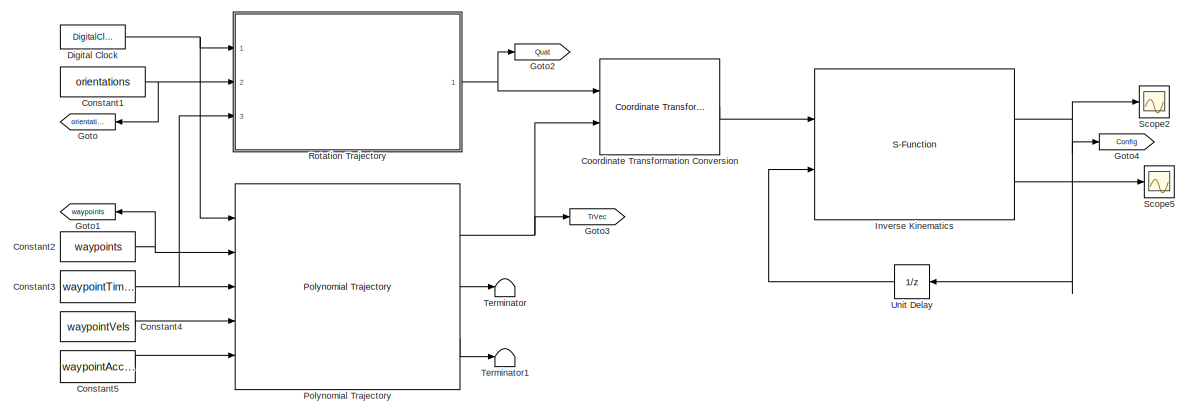
[diagram: root canvas - part 1/3, central region]
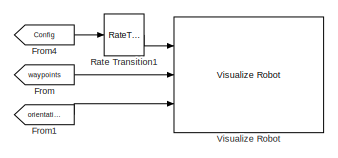
[diagram: root canvas - part 2/3, top right region]
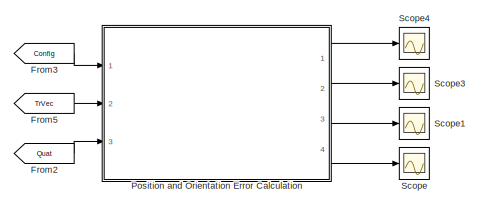
[diagram: root canvas - part 3/3, bottom right region]
MODEL slx_10bb053a7b2e
KIND model
CONFIG AbsTol = auto
CONFIG EnableMultiTasking = off
CONFIG FixedStep = auto
CONFIG MaxStep = auto
CONFIG MinStep = auto
CONFIG RelTol = 1e-3
CONFIG SampleTimeConstraint = Unconstrained
CONFIG Solver = VariableStepAuto
CONFIG SolverName = VariableStepAuto
CONFIG StartTime = 0.0
CONFIG StopTime = 15
BLOCK [Constant] Constant1
  Value = orientations
BLOCK [Constant] Constant2
  Value = waypoints
BLOCK [Constant] Constant3
  Value = waypointTimes
BLOCK [Constant] Constant4
  Value = waypointVels
BLOCK [Constant] Constant5
  Value = waypointAccels
BLOCK [Reference] Coordinate Transformation Conversion  REF=robotcorelib/Coordinate Transformation Conversion
  Ports = [2, 1]
  SourceBlock = robotcorelib/Coordinate Transformation Conversion
  SourceProductBaseCode = NV,RO,RR
  SourceType = robotics.slcore.internal.block.CoordinateTransformationConversion
BLOCK [DigitalClock] Digital Clock
  SampleTime = Ts
BLOCK [From] From
  GotoTag = waypoints
BLOCK [From] From1
  GotoTag = orientation
BLOCK [From] From2
  GotoTag = Quat
BLOCK [From] From3
  GotoTag = Config
BLOCK [From] From4
  GotoTag = Config
BLOCK [From] From5
  GotoTag = TrVec
BLOCK [Goto] Goto
  GotoTag = orientation
  NameLocation = top
BLOCK [Goto] Goto1
  GotoTag = waypoints
  NameLocation = top
BLOCK [Goto] Goto2
  GotoTag = Quat
BLOCK [Goto] Goto3
  GotoTag = TrVec
BLOCK [Goto] Goto4
  GotoTag = Config
BLOCK [S-Function] Inverse Kinematics
  CopyFcn = set_param(gcbh,'LinkStatus','none')
  EnableBusSupport = off
  FunctionName = Inverse_Kinematics_BFGS
  InitFcn = try, set_param(gcb,'FunctionName','Inverse_Kinematics_BFGS'), end
  OpenFcn = sfunctionwizard(gcbh)
  Ports = [2, 2]
  PreSaveFcn = try, set_param(gcb,'FunctionName','Inverse_Kinematics_BFGS'), end
  SFcnIsStateOwnerBlock = off
  SFunctionDeploymentMode = off
  SFunctionModules = Inverse_Kinematics_BFGS_wrapper
BLOCK [Reference] Polynomial Trajectory  REF=robotcorelib/Polynomial Trajectory
  Ports = [5, 3]
  SourceBlock = robotcorelib/Polynomial Trajectory
  SourceProductBaseCode = NV,RO,RR
  SourceType = robotics.slcore.internal.block.PolyTrajSys
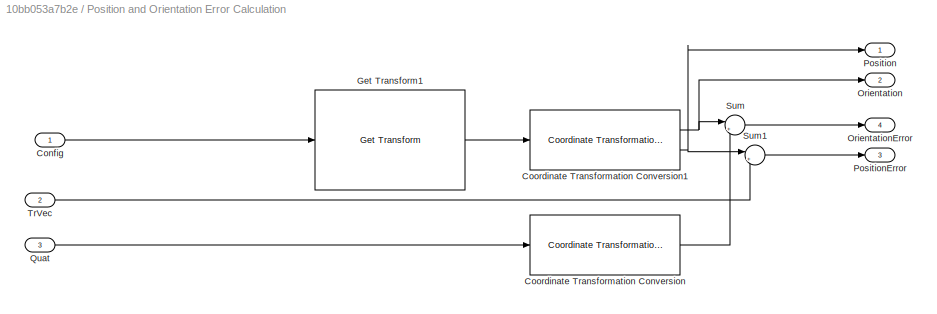
BLOCK [SubSystem] Position and Orientation Error Calculation
  Ports = [3, 4]
  RequestExecContextInheritance = off
  Tag = Error Calculation
BLOCK [Inport] Position and Orientation Error Calculation/Config
BLOCK [Reference] Position and Orientation Error Calculation/Coordinate Transformation Conversion  REF=robotcorelib/Coordinate Transformation Conversion
  Ports = [1, 1]
  SourceBlock = robotcorelib/Coordinate Transformation Conversion
  SourceProductBaseCode = NV,RO,RR
  SourceType = robotics.slcore.internal.block.CoordinateTransformationConversion
BLOCK [Reference] Position and Orientation Error Calculation/Coordinate Transformation Conversion1  REF=robotcorelib/Coordinate Transformation Conversion
  Ports = [1, 2]
  SourceBlock = robotcorelib/Coordinate Transformation Conversion
  SourceProductBaseCode = NV,RO,RR
  SourceType = robotics.slcore.internal.block.CoordinateTransformationConversion
BLOCK [Reference] Position and Orientation Error Calculation/Get Transform1  REF=robotmaniplib/Get Transform
  Ports = [1, 1]
  SourceBlock = robotmaniplib/Get Transform
  SourceProductBaseCode = RO
  SourceType = Get Transform
BLOCK [Outport] Position and Orientation Error Calculation/Orientation
  Port = 2
BLOCK [Outport] Position and Orientation Error Calculation/OrientationError
  Port = 4
BLOCK [Outport] Position and Orientation Error Calculation/Position
BLOCK [Outport] Position and Orientation Error Calculation/PositionError
  Port = 3
BLOCK [Inport] Position and Orientation Error Calculation/Quat
  Port = 3
BLOCK [Sum] Position and Orientation Error Calculation/Sum
  Inputs = |+-
  Ports = [2, 1]
BLOCK [Sum] Position and Orientation Error Calculation/Sum1
  Inputs = |+-
  Ports = [2, 1]
BLOCK [Inport] Position and Orientation Error Calculation/TrVec
  Port = 2
BLOCK [RateTransition] Rate Transition1
  NameLocation = top
  OutPortSampleTime = Ts
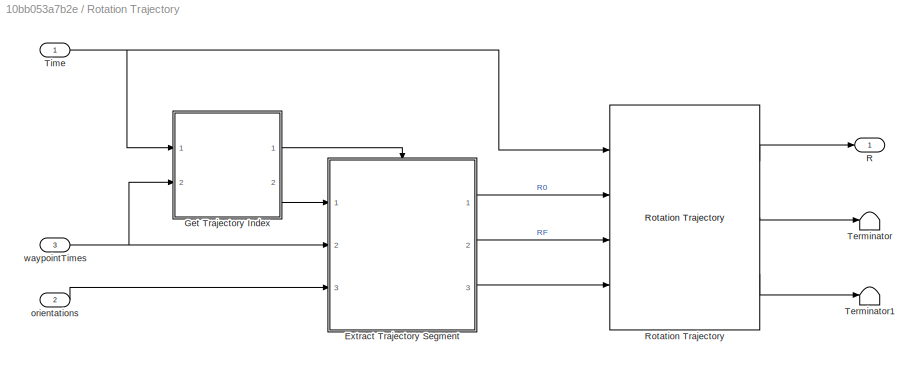
BLOCK [SubSystem] Rotation Trajectory
  Ports = [3, 1]
  RequestExecContextInheritance = off
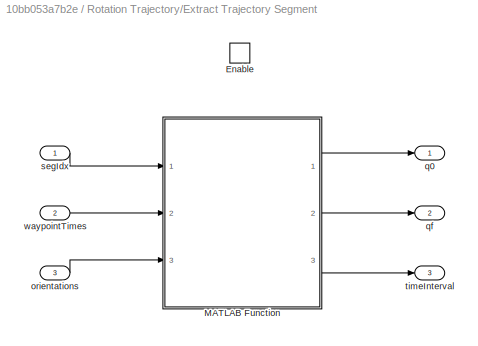
BLOCK [SubSystem] Rotation Trajectory/Extract Trajectory Segment
  Ports = [3, 3, 1]
  RequestExecContextInheritance = off
BLOCK [EnablePort] Rotation Trajectory/Extract Trajectory Segment/Enable
  Ports = []
  PropagateVarSize = During execution
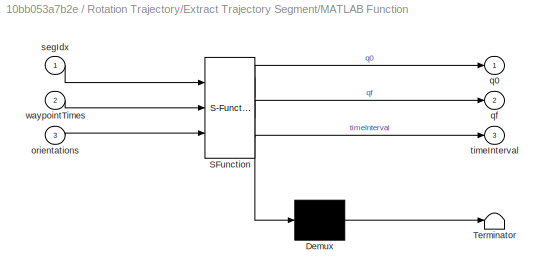
BLOCK [SubSystem] Rotation Trajectory/Extract Trajectory Segment/MATLAB Function
  ErrorFcn = Stateflow.Translate.translate
  PermitHierarchicalResolution = ExplicitOnly
  Ports = [3, 3]
  RequestExecContextInheritance = off
  SFBlockType = MATLAB Function
  TreatAsAtomicUnit = on
BLOCK [Demux] Rotation Trajectory/Extract Trajectory Segment/MATLAB Function/ Demux 
  Outputs = 1
  Ports = [1, 1]
BLOCK [S-Function] Rotation Trajectory/Extract Trajectory Segment/MATLAB Function/ SFunction 
  EnableBusSupport = on
  FunctionName = sf_sfun
  PortCounts = [3 4]
  Ports = [3, 4]
  SFcnIsStateOwnerBlock = off
  SFunctionDeploymentMode = off
  Tag = Stateflow S-Function 7
BLOCK [Terminator] Rotation Trajectory/Extract Trajectory Segment/MATLAB Function/ Terminator 
BLOCK [Inport] Rotation Trajectory/Extract Trajectory Segment/MATLAB Function/orientations
  Port = 3
BLOCK [Outport] Rotation Trajectory/Extract Trajectory Segment/MATLAB Function/q0
  VectorParamsAs1DForOutWhenUnconnected = off
BLOCK [Outport] Rotation Trajectory/Extract Trajectory Segment/MATLAB Function/qf
  Port = 2
  VectorParamsAs1DForOutWhenUnconnected = off
BLOCK [Inport] Rotation Trajectory/Extract Trajectory Segment/MATLAB Function/segIdx
BLOCK [Outport] Rotation Trajectory/Extract Trajectory Segment/MATLAB Function/timeInterval
  Port = 3
  VectorParamsAs1DForOutWhenUnconnected = off
BLOCK [Inport] Rotation Trajectory/Extract Trajectory Segment/MATLAB Function/waypointTimes
  Port = 2
BLOCK [Inport] Rotation Trajectory/Extract Trajectory Segment/orientations
  Port = 3
BLOCK [Outport] Rotation Trajectory/Extract Trajectory Segment/q0
  VectorParamsAs1DForOutWhenUnconnected = off
BLOCK [Outport] Rotation Trajectory/Extract Trajectory Segment/qf
  Port = 2
  VectorParamsAs1DForOutWhenUnconnected = off
BLOCK [Inport] Rotation Trajectory/Extract Trajectory Segment/segIdx
BLOCK [Outport] Rotation Trajectory/Extract Trajectory Segment/timeInterval
  Port = 3
  VectorParamsAs1DForOutWhenUnconnected = off
BLOCK [Inport] Rotation Trajectory/Extract Trajectory Segment/waypointTimes
  Port = 2
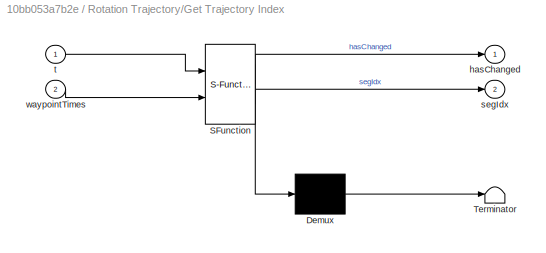
BLOCK [SubSystem] Rotation Trajectory/Get Trajectory Index
  ErrorFcn = Stateflow.Translate.translate
  PermitHierarchicalResolution = ExplicitOnly
  Ports = [2, 2]
  RequestExecContextInheritance = off
  SFBlockType = MATLAB Function
  TreatAsAtomicUnit = on
BLOCK [Demux] Rotation Trajectory/Get Trajectory Index/ Demux 
  Outputs = 1
  Ports = [1, 1]
BLOCK [S-Function] Rotation Trajectory/Get Trajectory Index/ SFunction 
  EnableBusSupport = on
  FunctionName = sf_sfun
  PortCounts = [2 3]
  Ports = [2, 3]
  SFcnIsStateOwnerBlock = off
  SFunctionDeploymentMode = off
  Tag = Stateflow S-Function 6
BLOCK [Terminator] Rotation Trajectory/Get Trajectory Index/ Terminator 
BLOCK [Outport] Rotation Trajectory/Get Trajectory Index/hasChanged
  VectorParamsAs1DForOutWhenUnconnected = off
BLOCK [Outport] Rotation Trajectory/Get Trajectory Index/segIdx
  Port = 2
  VectorParamsAs1DForOutWhenUnconnected = off
BLOCK [Inport] Rotation Trajectory/Get Trajectory Index/t
BLOCK [Inport] Rotation Trajectory/Get Trajectory Index/waypointTimes
  Port = 2
BLOCK [Outport] Rotation Trajectory/R
  VectorParamsAs1DForOutWhenUnconnected = off
BLOCK [Reference] Rotation Trajectory/Rotation Trajectory  REF=robotcorelib/Rotation Trajectory
  Ports = [4, 3]
  SourceBlock = robotcorelib/Rotation Trajectory
  SourceProductBaseCode = NV,RO,RR
  SourceType = robotics.slcore.internal.block.RotTrajSys
BLOCK [Terminator] Rotation Trajectory/Terminator
BLOCK [Terminator] Rotation Trajectory/Terminator1
BLOCK [Inport] Rotation Trajectory/Time
BLOCK [Inport] Rotation Trajectory/orientations
  Port = 2
BLOCK [Inport] Rotation Trajectory/waypointTimes
  Port = 3
BLOCK [Scope] Scope
  Floating = off
  NumInputPorts = 1
  Ports = [1]
  ScopeSpecificationString = Simulink.scopes.TimeScopeBlockCfg('CurrentConfiguration', extmgr.ConfigurationSet(extmgr.Configuration('Core','General UI',true,'FigureColor',[1 1 1]),extmgr.Configuration('Core','Source UI',true),extmgr.Configuration('Sources','WiredSimulink',true),extmgr.Configuration('Visuals','Time Domain',true,'PlotType','Line','SerializedDisplays',{struct('MinYLimReal','-1.76715','MaxYLimReal','0.19635','YLa...<+1829ch>
BLOCK [Scope] Scope1
  Floating = off
  NumInputPorts = 1
  Ports = [1]
  ScopeSpecificationString = Simulink.scopes.TimeScopeBlockCfg('CurrentConfiguration', extmgr.ConfigurationSet(extmgr.Configuration('Core','General UI',true,'FigureColor',[1 1 1]),extmgr.Configuration('Core','Source UI',true),extmgr.Configuration('Sources','WiredSimulink',true,'DataLoggingVariableName','ScopeData1'),extmgr.Configuration('Visuals','Time Domain',true,'PlotType','Line','SerializedDisplays',{struct('MinYLimReal',...<+1870ch>
BLOCK [Scope] Scope2
  Floating = off
  NumInputPorts = 1
  Ports = [1]
  ScopeSpecificationString = Simulink.scopes.TimeScopeBlockCfg('CurrentConfiguration', extmgr.ConfigurationSet(extmgr.Configuration('Core','General UI',true,'FigureColor',[1 1 1]),extmgr.Configuration('Core','Source UI',true),extmgr.Configuration('Sources','WiredSimulink',true,'DataLoggingVariableName','ScopeData2'),extmgr.Configuration('Visuals','Time Domain',true,'PlotType','Line','SerializedDisplays',{struct('MinYLimReal',...<+2524ch>
BLOCK [Scope] Scope3
  Floating = off
  NumInputPorts = 1
  Ports = [1]
  ScopeSpecificationString = Simulink.scopes.TimeScopeBlockCfg('CurrentConfiguration', extmgr.ConfigurationSet(extmgr.Configuration('Core','General UI',true,'FigureColor',[1 1 1]),extmgr.Configuration('Core','Source UI',true),extmgr.Configuration('Sources','WiredSimulink',true,'DataLoggingVariableName','ScopeData3'),extmgr.Configuration('Visuals','Time Domain',true,'PlotType','Line','SerializedDisplays',{struct('MinYLimReal',...<+1868ch>
BLOCK [Scope] Scope4
  Floating = off
  NumInputPorts = 1
  Ports = [1]
  ScopeSpecificationString = Simulink.scopes.TimeScopeBlockCfg('CurrentConfiguration', extmgr.ConfigurationSet(extmgr.Configuration('Core','General UI',true,'FigureColor',[1 1 1]),extmgr.Configuration('Core','Source UI',true),extmgr.Configuration('Sources','WiredSimulink',true,'DataLoggingVariableName','ScopeData4'),extmgr.Configuration('Visuals','Time Domain',true,'PlotType','Line','SerializedDisplays',{struct('MinYLimReal',...<+1868ch>
BLOCK [Scope] Scope5
  Floating = off
  NumInputPorts = 1
  Ports = [1]
  ScopeSpecificationString = Simulink.scopes.TimeScopeBlockCfg('CurrentConfiguration', extmgr.ConfigurationSet(extmgr.Configuration('Core','General UI',true,'FigureColor',[1 1 1]),extmgr.Configuration('Core','Source UI',true),extmgr.Configuration('Sources','WiredSimulink',true,'DataLoggingVariableName','ScopeData5'),extmgr.Configuration('Visuals','Time Domain',true,'PlotType','Line','SerializedDisplays',{struct('MinYLimReal',...<+1579ch>
BLOCK [Terminator] Terminator
BLOCK [Terminator] Terminator1
BLOCK [UnitDelay] Unit Delay
  HasFrameUpgradeWarning = on
  InitialCondition = [0 0 0 0 0 0 0]
  NameLocation = top
  SampleTime = -1
BLOCK [Reference] Visualize Robot  REF=trajExampleUtils/Visualize Robot
  Ports = [3]
  SourceBlock = trajExampleUtils/Visualize Robot
  SourceType = Visualize Robot
NET Constant1:1 -> Goto:1, Rotation Trajectory:2
NET Constant2:1 -> Goto1:1, Polynomial Trajectory:2
NET Constant3:1 -> Polynomial Trajectory:3, Rotation Trajectory:3
LINE Constant4:1 -> Polynomial Trajectory:4
LINE Constant5:1 -> Polynomial Trajectory:5
LINE Coordinate Transformation Conversion:1 -> Inverse Kinematics:1
NET Digital Clock:1 -> Polynomial Trajectory:1, Rotation Trajectory:1
LINE From1:1 -> Visualize Robot:3
LINE From2:1 -> Position and Orientation Error Calculation:3
LINE From3:1 -> Position and Orientation Error Calculation:1
LINE From4:1 -> Rate Transition1:1
LINE From5:1 -> Position and Orientation Error Calculation:2
LINE From:1 -> Visualize Robot:2
NET Inverse Kinematics:1 -> Goto4:1, Scope2:1, Unit Delay:1
LINE Inverse Kinematics:2 -> Scope5:1
NET Polynomial Trajectory:1 -> Coordinate Transformation Conversion:2, Goto3:1
LINE Polynomial Trajectory:2 -> Terminator:1
LINE Polynomial Trajectory:3 -> Terminator1:1
LINE Position and Orientation Error Calculation/Config:1 -> Position and Orientation Error Calculation/Get Transform1:1
NET Position and Orientation Error Calculation/Coordinate Transformation Conversion1:1 -> Position and Orientation Error Calculation/Orientation:1, Position and Orientation Error Calculation/Sum:1
NET Position and Orientation Error Calculation/Coordinate Transformation Conversion1:2 -> Position and Orientation Error Calculation/Position:1, Position and Orientation Error Calculation/Sum1:1
LINE Position and Orientation Error Calculation/Coordinate Transformation Conversion:1 -> Position and Orientation Error Calculation/Sum:2
LINE Position and Orientation Error Calculation/Get Transform1:1 -> Position and Orientation Error Calculation/Coordinate Transformation Conversion1:1
LINE Position and Orientation Error Calculation/Quat:1 -> Position and Orientation Error Calculation/Coordinate Transformation Conversion:1
LINE Position and Orientation Error Calculation/Sum1:1 -> Position and Orientation Error Calculation/PositionError:1
LINE Position and Orientation Error Calculation/Sum:1 -> Position and Orientation Error Calculation/OrientationError:1
LINE Position and Orientation Error Calculation/TrVec:1 -> Position and Orientation Error Calculation/Sum1:2
LINE Position and Orientation Error Calculation:1 -> Scope4:1
LINE Position and Orientation Error Calculation:2 -> Scope3:1
LINE Position and Orientation Error Calculation:3 -> Scope1:1
LINE Position and Orientation Error Calculation:4 -> Scope:1
LINE Rate Transition1:1 -> Visualize Robot:1
LINE Rotation Trajectory/Extract Trajectory Segment/MATLAB Function:1 -> Rotation Trajectory/Extract Trajectory Segment/q0:1
LINE Rotation Trajectory/Extract Trajectory Segment/MATLAB Function:2 -> Rotation Trajectory/Extract Trajectory Segment/qf:1
LINE Rotation Trajectory/Extract Trajectory Segment/MATLAB Function:3 -> Rotation Trajectory/Extract Trajectory Segment/timeInterval:1
LINE Rotation Trajectory/Extract Trajectory Segment/orientations:1 -> Rotation Trajectory/Extract Trajectory Segment/MATLAB Function:3
LINE Rotation Trajectory/Extract Trajectory Segment/segIdx:1 -> Rotation Trajectory/Extract Trajectory Segment/MATLAB Function:1
LINE Rotation Trajectory/Extract Trajectory Segment/waypointTimes:1 -> Rotation Trajectory/Extract Trajectory Segment/MATLAB Function:2
LINE Rotation Trajectory/Extract Trajectory Segment:1 -> Rotation Trajectory/Rotation Trajectory:2
LINE Rotation Trajectory/Extract Trajectory Segment:2 -> Rotation Trajectory/Rotation Trajectory:3
LINE Rotation Trajectory/Extract Trajectory Segment:3 -> Rotation Trajectory/Rotation Trajectory:4
LINE Rotation Trajectory/Get Trajectory Index:1 -> Rotation Trajectory/Extract Trajectory Segment:enable
LINE Rotation Trajectory/Get Trajectory Index:2 -> Rotation Trajectory/Extract Trajectory Segment:1
LINE Rotation Trajectory/Rotation Trajectory:1 -> Rotation Trajectory/R:1
LINE Rotation Trajectory/Rotation Trajectory:2 -> Rotation Trajectory/Terminator:1
LINE Rotation Trajectory/Rotation Trajectory:3 -> Rotation Trajectory/Terminator1:1
NET Rotation Trajectory/Time:1 -> Rotation Trajectory/Get Trajectory Index:1, Rotation Trajectory/Rotation Trajectory:1
LINE Rotation Trajectory/orientations:1 -> Rotation Trajectory/Extract Trajectory Segment:3
NET Rotation Trajectory/waypointTimes:1 -> Rotation Trajectory/Extract Trajectory Segment:2, Rotation Trajectory/Get Trajectory Index:2
NET Rotation Trajectory:1 -> Coordinate Transformation Conversion:1, Goto2:1
LINE Unit Delay:1 -> Inverse Kinematics:2
note: NET lines group one-source signal fan-out (src -> all destinations, sorted); 1:1 wires keep LINE
CHART Rotation Trajectory/Get Trajectory Index states=1 transitions=1
  STATE_LABEL 'eML_blk_kernel()'
  STATE_LABEL 'SCRIPT:\nfunction [hasChanged,segIdx] = getTrajIdx(t,waypointTimes)\n\n% Initialize previous index\npersistent prevIdx\nif isempty(prevIdx)\n    prevIdx = 0;\nend\n\n% Find the trajectory segment index\nsegIndices = find(t>=waypointTimes);\n\n% Limit the index value to the number of times minus one\n% (This addresses the final time case)\nsegIdx = min(segIndices(end),numel(waypointTimes)-1);\n\n% Determine whethe...<+157ch>'
CHART Rotation Trajectory/Extract Trajectory Segment/MATLAB Function states=1 transitions=1
  STATE_LABEL 'eML_blk_kernel()'
  STATE_LABEL "SCRIPT:\nfunction [q0, qf, timeInterval] = createRotationTrajSegment(segIdx,waypointTimes,orientations)\n\n% Extract the time interval, initial, and final quaternions for the segment\ntimeInterval = waypointTimes(segIdx:segIdx+1);\nq0 = eul2quat(orientations(:,segIdx)');\nqf = eul2quat(orientations(:,segIdx+1)');\n\nend\n\n"
CHART  states=0 transitions=0
CHART  states=0 transitions=0
